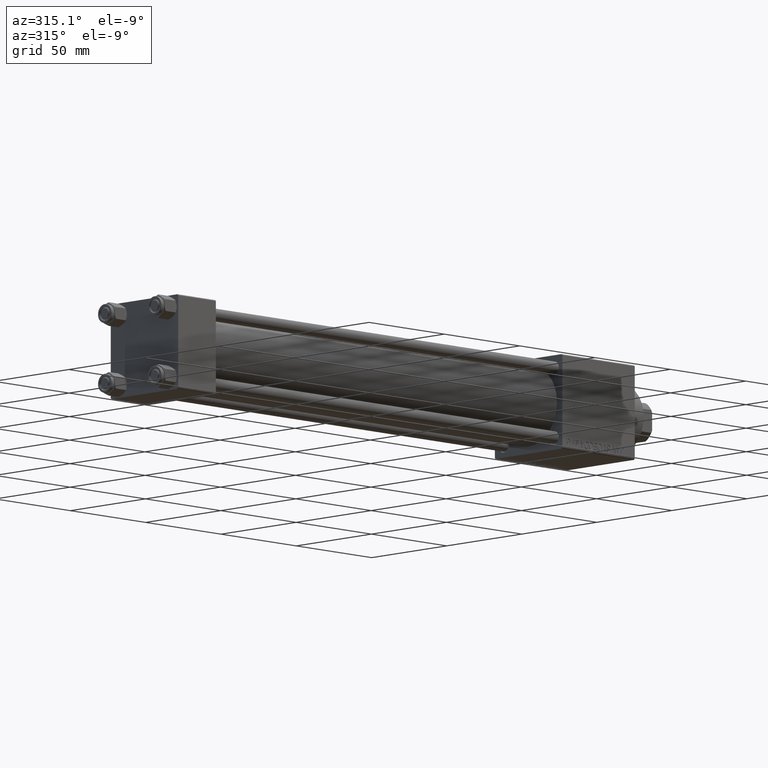
[diagram: clean part render]
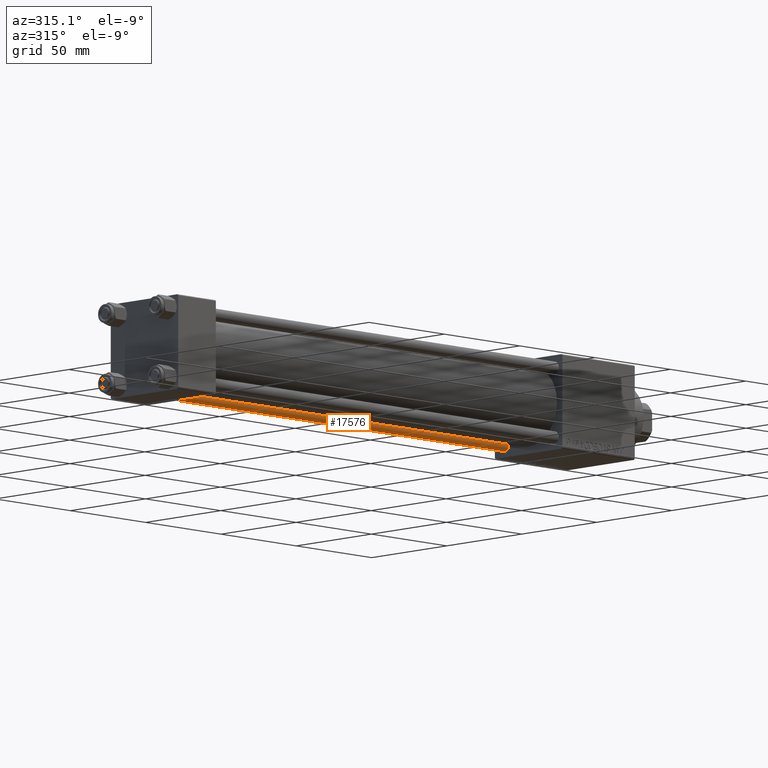
[diagram: same view with one face highlighted and labeled with its STEP entity id]
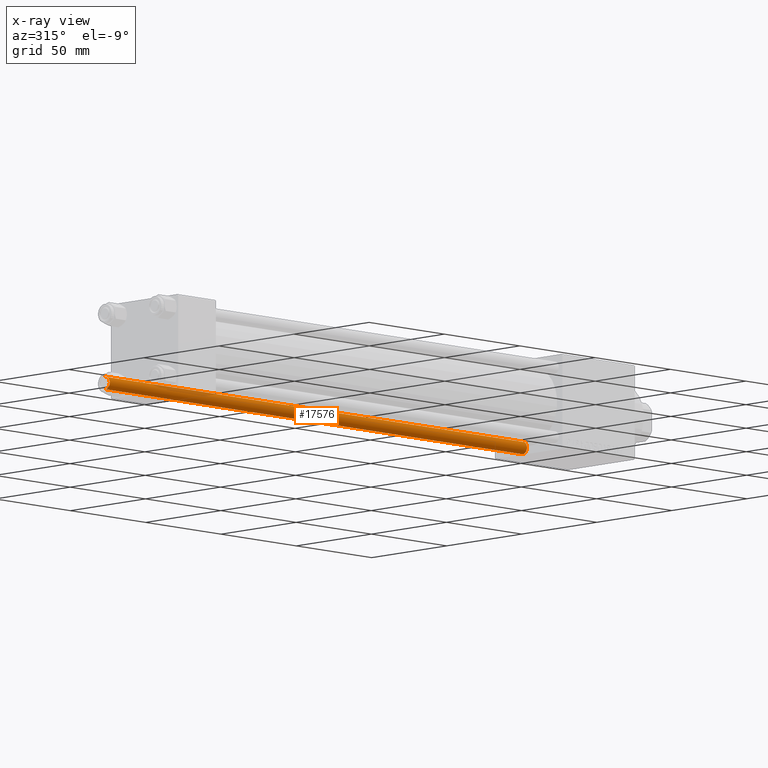
[diagram: x-ray of the same camera — body ghosted, the highlighted face saturated]
A machine part, auxiliary view. The second image highlights one B-rep face of the part: STEP entity #17576.
The next image is the same camera in x-ray: the body ghosted, the highlighted face saturated — about 4% of this face is hidden behind the body in this view.
In plain terms, the highlighted cylindrical surface (edge-blend (fillet) strip) has radius 3 mm, axis along (1, -0, 0).
Its self-contained STEP definition (entity closure, byte-faithful):
#888 = DIRECTION ( 'NONE',  ( 0.000000000000000000, 0.000000000000000000, -1.000000000000000000 ) ) ;
#1478 = VERTEX_POINT ( 'NONE', #22034 ) ;
#3402 = AXIS2_PLACEMENT_3D ( 'NONE', #16923, #888, #17184 ) ;
#3521 = CARTESIAN_POINT ( 'NONE',  ( 3.000000000000000444, 3.673940397442060361E-16, 277.5000000000000568 ) ) ;
#5364 = EDGE_CURVE ( 'NONE', #43598, #1478, #33937, .T. ) ;
#6229 = DIRECTION ( 'NONE',  ( -1.000000000000000000, 0.000000000000000000, 0.000000000000000000 ) ) ;
#8298 = ORIENTED_EDGE ( 'NONE', *, *, #37506, .F. ) ;
#10584 = LINE ( 'NONE', #34781, #10813 ) ;
#10813 = VECTOR ( 'NONE', #46476, 1000.000000000000000 ) ;
#11046 = CARTESIAN_POINT ( 'NONE',  ( 0.000000000000000000, 0.000000000000000000, 278.0000000000000000 ) ) ;
#11503 = CIRCLE ( 'NONE', #3402, 3.000000000000000444 ) ;
#11952 = AXIS2_PLACEMENT_3D ( 'NONE', #14410, #49281, #18489 ) ;
#13636 = CARTESIAN_POINT ( 'NONE',  ( -3.000000000000000444, 0.000000000000000000, 277.5000000000000568 ) ) ;
#14410 = CARTESIAN_POINT ( 'NONE',  ( 0.000000000000000000, 0.000000000000000000, 0.5000000000000559552 ) ) ;
#14882 = FACE_OUTER_BOUND ( 'NONE', #19300, .T. ) ;
#16726 = LINE ( 'NONE', #28448, #35915 ) ;
#16923 = CARTESIAN_POINT ( 'NONE',  ( 0.000000000000000000, 0.000000000000000000, 277.5000000000000568 ) ) ;
#17184 = DIRECTION ( 'NONE',  ( 1.000000000000000000, 0.000000000000000000, 0.000000000000000000 ) ) ;
#17323 = VERTEX_POINT ( 'NONE', #13636 ) ;
#17576 = ADVANCED_FACE ( 'NONE', ( #14882 ), #30432, .T. ) ;
#18489 = DIRECTION ( 'NONE',  ( 1.000000000000000000, 0.000000000000000000, 0.000000000000000000 ) ) ;
#19300 = EDGE_LOOP ( 'NONE', ( #8298, #43391, #19425, #49033 ) ) ;
#19425 = ORIENTED_EDGE ( 'NONE', *, *, #32924, .T. ) ;
#21237 = AXIS2_PLACEMENT_3D ( 'NONE', #11046, #42130, #6229 ) ;
#22034 = CARTESIAN_POINT ( 'NONE',  ( 3.000000000000000444, 3.673940397442060361E-16, 0.5000000000000559552 ) ) ;
#28448 = CARTESIAN_POINT ( 'NONE',  ( -3.000000000000000444, 0.000000000000000000, 278.0000000000000000 ) ) ;
#30432 = CYLINDRICAL_SURFACE ( 'NONE', #21237, 3.000000000000000444 ) ;
#32924 = EDGE_CURVE ( 'NONE', #17323, #43598, #16726, .T. ) ;
#33839 = EDGE_CURVE ( 'NONE', #44739, #17323, #11503, .T. ) ;
#33937 = CIRCLE ( 'NONE', #11952, 3.000000000000000444 ) ;
#34781 = CARTESIAN_POINT ( 'NONE',  ( 3.000000000000000444, 3.673940397442060361E-16, 278.0000000000000000 ) ) ;
#34891 = CARTESIAN_POINT ( 'NONE',  ( -3.000000000000000444, 0.000000000000000000, 0.5000000000000559552 ) ) ;
#35915 = VECTOR ( 'NONE', #48040, 1000.000000000000000 ) ;
#37506 = EDGE_CURVE ( 'NONE', #44739, #1478, #10584, .T. ) ;
#42130 = DIRECTION ( 'NONE',  ( -0.000000000000000000, -0.000000000000000000, -1.000000000000000000 ) ) ;
#43391 = ORIENTED_EDGE ( 'NONE', *, *, #33839, .T. ) ;
#43598 = VERTEX_POINT ( 'NONE', #34891 ) ;
#44739 = VERTEX_POINT ( 'NONE', #3521 ) ;
#46476 = DIRECTION ( 'NONE',  ( -0.000000000000000000, -0.000000000000000000, -1.000000000000000000 ) ) ;
#48040 = DIRECTION ( 'NONE',  ( -0.000000000000000000, -0.000000000000000000, -1.000000000000000000 ) ) ;
#49033 = ORIENTED_EDGE ( 'NONE', *, *, #5364, .T. ) ;
#49281 = DIRECTION ( 'NONE',  ( -0.000000000000000000, -0.000000000000000000, 1.000000000000000000 ) ) ;